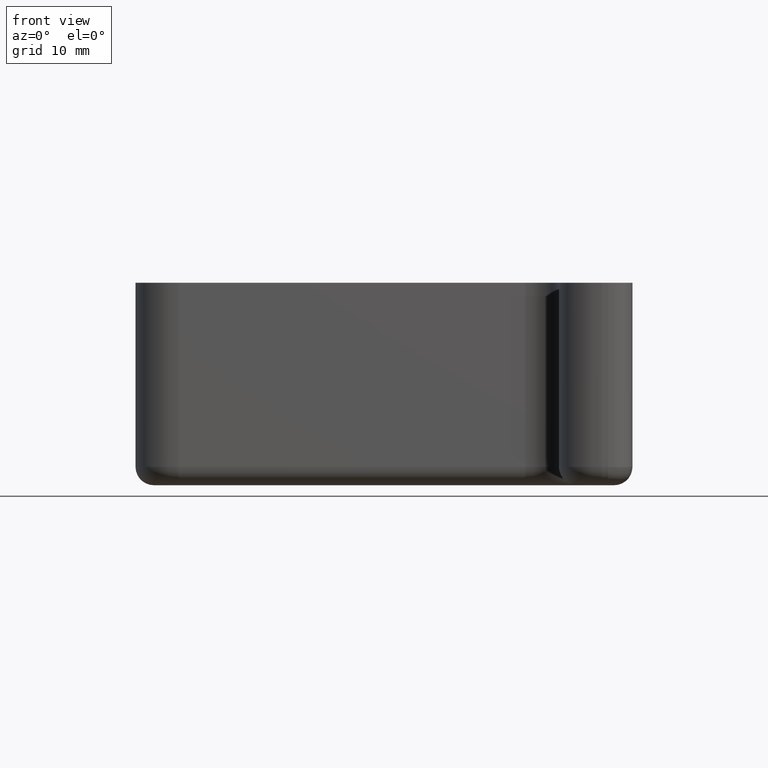
[diagram: clean part render]
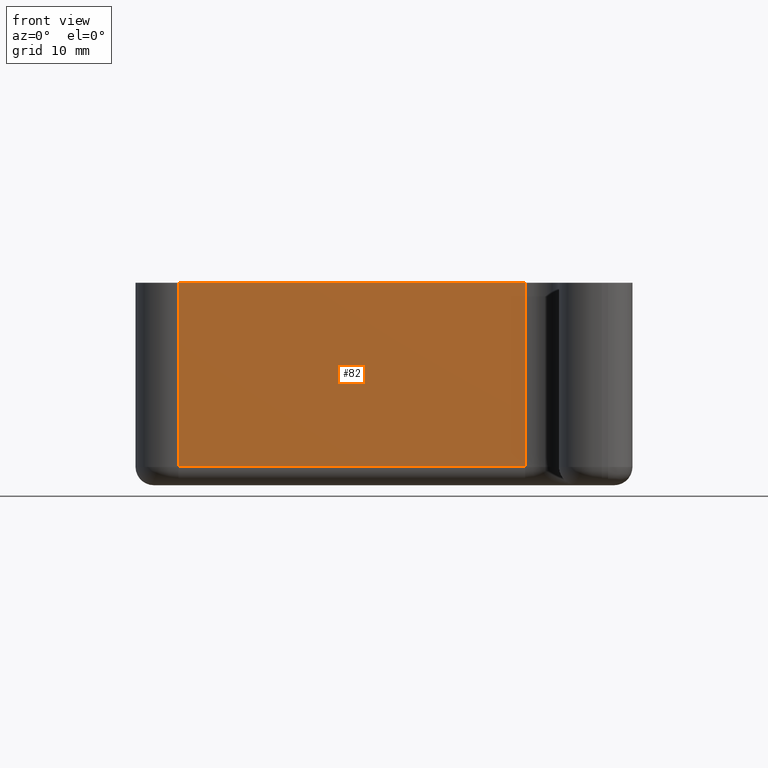
[diagram: same view with one face highlighted and labeled with its STEP entity id]
A machine part, front view. The second image highlights one B-rep face of the part: STEP entity #82.
In plain terms, the highlighted planar face has unit normal (-0, -1, -0).
Its self-contained STEP definition (entity closure, byte-faithful):
#82 = ADVANCED_FACE( '', ( #129 ), #130, .T. );
#129 = FACE_OUTER_BOUND( '', #223, .T. );
#130 = PLANE( '', #224 );
#223 = EDGE_LOOP( '', ( #364, #365, #366, #367 ) );
#224 = AXIS2_PLACEMENT_3D( '', #368, #369, #370 );
#364 = ORIENTED_EDGE( '', *, *, #641, .F. );
#365 = ORIENTED_EDGE( '', *, *, #640, .F. );
#366 = ORIENTED_EDGE( '', *, *, #642, .F. );
#367 = ORIENTED_EDGE( '', *, *, #643, .F. );
#368 = CARTESIAN_POINT( '', ( -75.0000000000000, -8.99999999999999, -30.0000000000000 ) );
#369 = DIRECTION( '', ( -1.43492962746861E-048, -1.00000000000000, -8.65927457071936E-017 ) );
#370 = DIRECTION( '', ( -1.00000000000000, -8.67907354531593E-033, 1.00228644725778E-016 ) );
#640 = EDGE_CURVE( '', #753, #749, #755, .T. );
#641 = EDGE_CURVE( '', #749, #719, #756, .T. );
#642 = EDGE_CURVE( '', #757, #753, #758, .T. );
#643 = EDGE_CURVE( '', #719, #757, #759, .T. );
#719 = VERTEX_POINT( '', #875 );
#749 = VERTEX_POINT( '', #912 );
#753 = VERTEX_POINT( '', #917 );
#755 = LINE( '', #919, #920 );
#756 = LINE( '', #921, #922 );
#757 = VERTEX_POINT( '', #923 );
#758 = LINE( '', #924, #925 );
#759 = LINE( '', #926, #927 );
#875 = CARTESIAN_POINT( '', ( -71.0000000000000, -8.99999999999999, -30.0000000000000 ) );
#912 = CARTESIAN_POINT( '', ( -14.5000000000000, -9.00000000000000, -30.0000000000000 ) );
#917 = CARTESIAN_POINT( '', ( -14.5000000000000, -9.00000000000000, 1.43451742783457E-015 ) );
#919 = CARTESIAN_POINT( '', ( -14.5000000000000, -9.00000000000000, -30.0000000000000 ) );
#920 = VECTOR( '', #1130, 1000.00000000000 );
#921 = CARTESIAN_POINT( '', ( -56.2500000000000, -8.99999999999999, -30.0000000000000 ) );
#922 = VECTOR( '', #1131, 1000.00000000000 );
#923 = CARTESIAN_POINT( '', ( -71.0000000000000, -9.00000000000000, 3.48092119928536E-015 ) );
#924 = CARTESIAN_POINT( '', ( -56.2500000000000, -9.00000000000000, 1.28871724651285E-015 ) );
#925 = VECTOR( '', #1132, 1000.00000000000 );
#926 = CARTESIAN_POINT( '', ( -71.0000000000000, -8.99999999999999, -30.0000000000000 ) );
#927 = VECTOR( '', #1133, 1000.00000000000 );
#1130 = DIRECTION( '', ( -3.58678896750442E-017, 8.65927457071936E-017, -1.00000000000000 ) );
#1131 = DIRECTION( '', ( -1.00000000000000, 0.000000000000000, 3.58678896750442E-017 ) );
#1132 = DIRECTION( '', ( 1.00000000000000, 0.000000000000000, -3.58678896750442E-017 ) );
#1133 = DIRECTION( '', ( 3.58678896750442E-017, -8.65927457071936E-017, 1.00000000000000 ) );